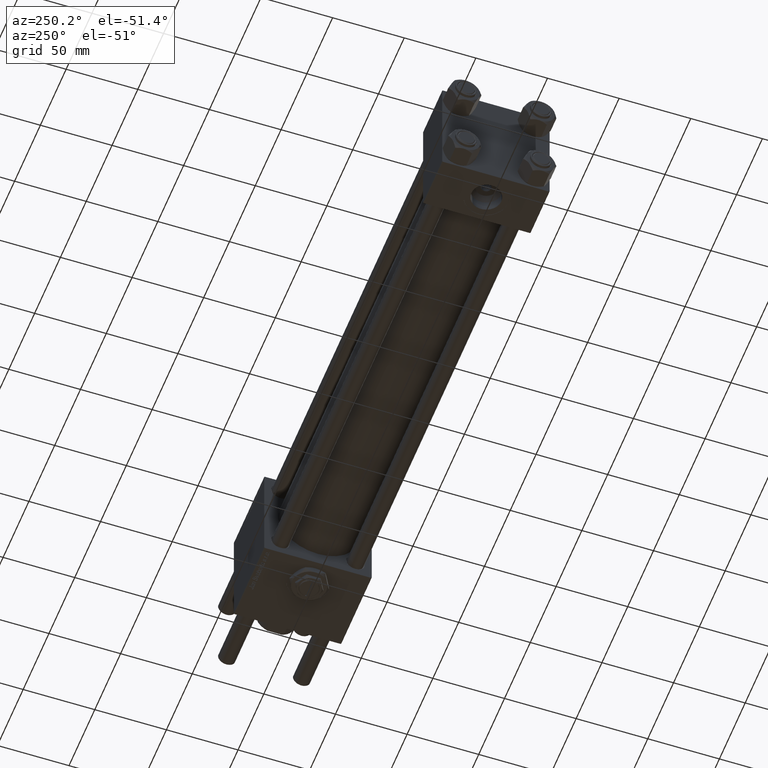
[diagram: clean part render]
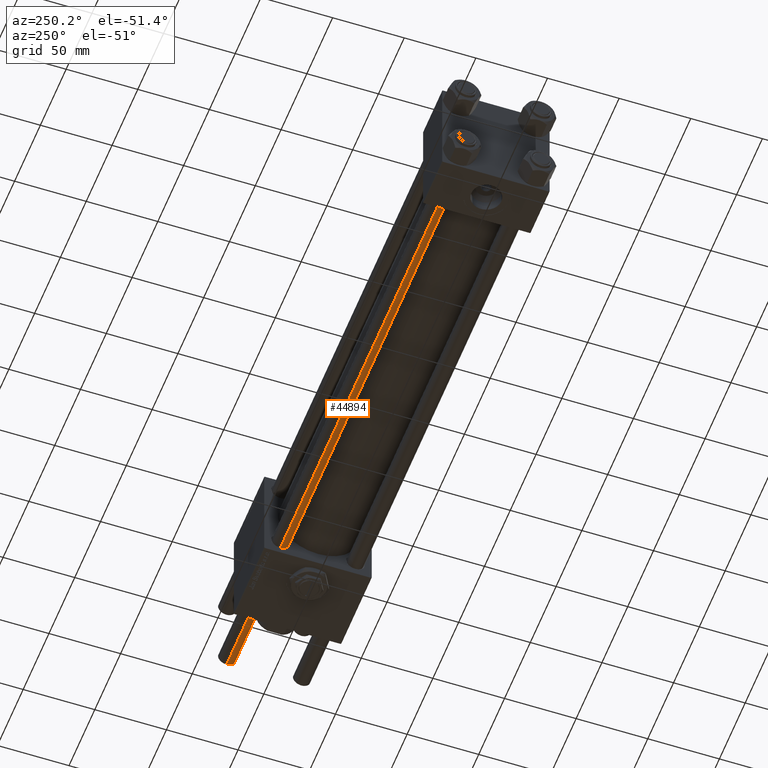
[diagram: same view with one face highlighted and labeled with its STEP entity id]
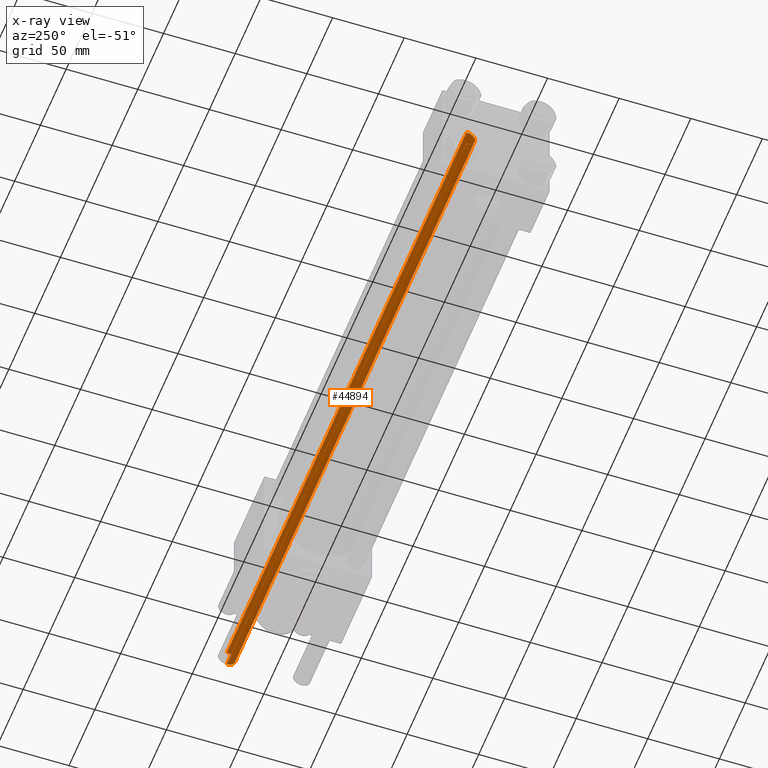
[diagram: x-ray of the same camera — body ghosted, the highlighted face saturated]
A machine part, auxiliary view. The second image highlights one B-rep face of the part: STEP entity #44894.
The next image is the same camera in x-ray: the body ghosted, the highlighted face saturated — about 0% of this face is hidden behind the body in this view.
In plain terms, the highlighted cylindrical surface (edge-blend (fillet) strip) has radius 6 mm, axis along (-1, -0, 0).
Its self-contained STEP definition (entity closure, byte-faithful):
#4037 = CIRCLE ( 'NONE', #53348, 6.000000000000000888 ) ;
#7185 = EDGE_LOOP ( 'NONE', ( #23499, #53154, #53056, #57621 ) ) ;
#7485 = CARTESIAN_POINT ( 'NONE',  ( 6.000000000000000888, 7.347880794884120722E-16, 465.5000000000000000 ) ) ;
#8051 = VERTEX_POINT ( 'NONE', #7485 ) ;
#9633 = VECTOR ( 'NONE', #54133, 1000.000000000000000 ) ;
#11609 = CARTESIAN_POINT ( 'NONE',  ( 0.000000000000000000, 0.000000000000000000, 465.5000000000000000 ) ) ;
#11759 = VERTEX_POINT ( 'NONE', #49601 ) ;
#12071 = CYLINDRICAL_SURFACE ( 'NONE', #27238, 6.000000000000000888 ) ;
#17389 = DIRECTION ( 'NONE',  ( -0.000000000000000000, -0.000000000000000000, -1.000000000000000000 ) ) ;
#19167 = EDGE_CURVE ( 'NONE', #8051, #11759, #34442, .T. ) ;
#20910 = EDGE_CURVE ( 'NONE', #21926, #11759, #33232, .T. ) ;
#21831 = FACE_OUTER_BOUND ( 'NONE', #7185, .T. ) ;
#21926 = VERTEX_POINT ( 'NONE', #37005 ) ;
#23434 = EDGE_CURVE ( 'NONE', #35173, #21926, #30942, .T. ) ;
#23499 = ORIENTED_EDGE ( 'NONE', *, *, #19167, .F. ) ;
#25422 = CARTESIAN_POINT ( 'NONE',  ( 0.000000000000000000, 0.000000000000000000, 466.0000000000000000 ) ) ;
#27238 = AXIS2_PLACEMENT_3D ( 'NONE', #25422, #17389, #35505 ) ;
#30942 = LINE ( 'NONE', #35408, #9633 ) ;
#33232 = CIRCLE ( 'NONE', #41781, 6.000000000000000888 ) ;
#34247 = CARTESIAN_POINT ( 'NONE',  ( 0.000000000000000000, 0.000000000000000000, 0.5000000000000004441 ) ) ;
#34442 = LINE ( 'NONE', #52603, #45567 ) ;
#35173 = VERTEX_POINT ( 'NONE', #35833 ) ;
#35408 = CARTESIAN_POINT ( 'NONE',  ( -6.000000000000000888, 0.000000000000000000, 466.0000000000000000 ) ) ;
#35505 = DIRECTION ( 'NONE',  ( -1.000000000000000000, 0.000000000000000000, 0.000000000000000000 ) ) ;
#35833 = CARTESIAN_POINT ( 'NONE',  ( -6.000000000000000888, 0.000000000000000000, 465.5000000000000000 ) ) ;
#37005 = CARTESIAN_POINT ( 'NONE',  ( -6.000000000000000888, 0.000000000000000000, 0.5000000000000004441 ) ) ;
#39509 = DIRECTION ( 'NONE',  ( 1.000000000000000000, 0.000000000000000000, 0.000000000000000000 ) ) ;
#41781 = AXIS2_PLACEMENT_3D ( 'NONE', #34247, #47956, #43771 ) ;
#43771 = DIRECTION ( 'NONE',  ( 1.000000000000000000, 0.000000000000000000, 0.000000000000000000 ) ) ;
#44894 = ADVANCED_FACE ( 'NONE', ( #21831 ), #12071, .T. ) ;
#45567 = VECTOR ( 'NONE', #56168, 1000.000000000000000 ) ;
#47956 = DIRECTION ( 'NONE',  ( -0.000000000000000000, -0.000000000000000000, 1.000000000000000000 ) ) ;
#49601 = CARTESIAN_POINT ( 'NONE',  ( 6.000000000000000888, 7.347880794884120722E-16, 0.5000000000000004441 ) ) ;
#51211 = EDGE_CURVE ( 'NONE', #8051, #35173, #4037, .T. ) ;
#52603 = CARTESIAN_POINT ( 'NONE',  ( 6.000000000000000888, 7.347880794884120722E-16, 466.0000000000000000 ) ) ;
#53056 = ORIENTED_EDGE ( 'NONE', *, *, #23434, .T. ) ;
#53154 = ORIENTED_EDGE ( 'NONE', *, *, #51211, .T. ) ;
#53348 = AXIS2_PLACEMENT_3D ( 'NONE', #11609, #57368, #39509 ) ;
#54133 = DIRECTION ( 'NONE',  ( -0.000000000000000000, -0.000000000000000000, -1.000000000000000000 ) ) ;
#56168 = DIRECTION ( 'NONE',  ( -0.000000000000000000, -0.000000000000000000, -1.000000000000000000 ) ) ;
#57368 = DIRECTION ( 'NONE',  ( 0.000000000000000000, 0.000000000000000000, -1.000000000000000000 ) ) ;
#57621 = ORIENTED_EDGE ( 'NONE', *, *, #20910, .T. ) ;